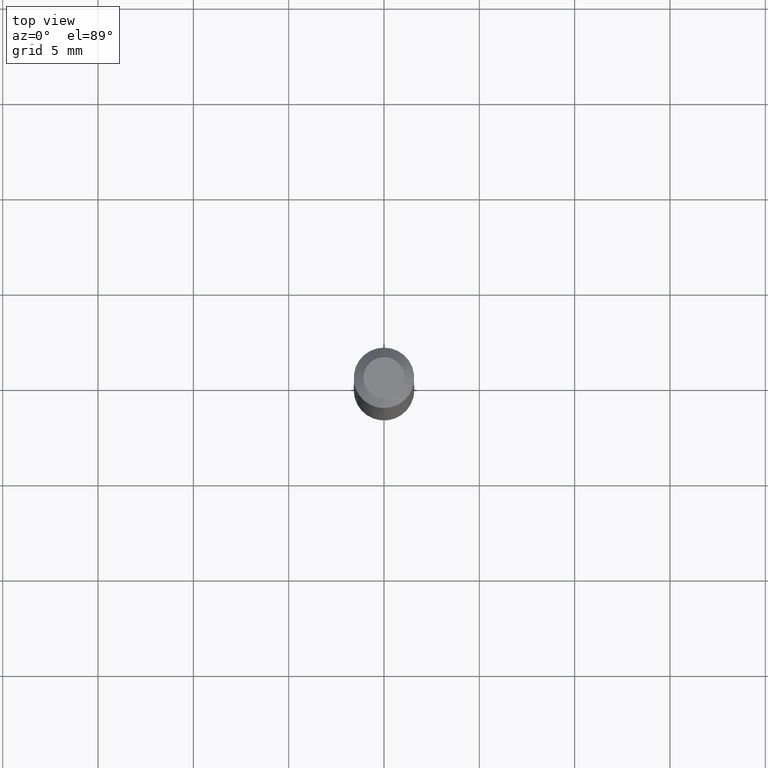
[diagram: clean part render]
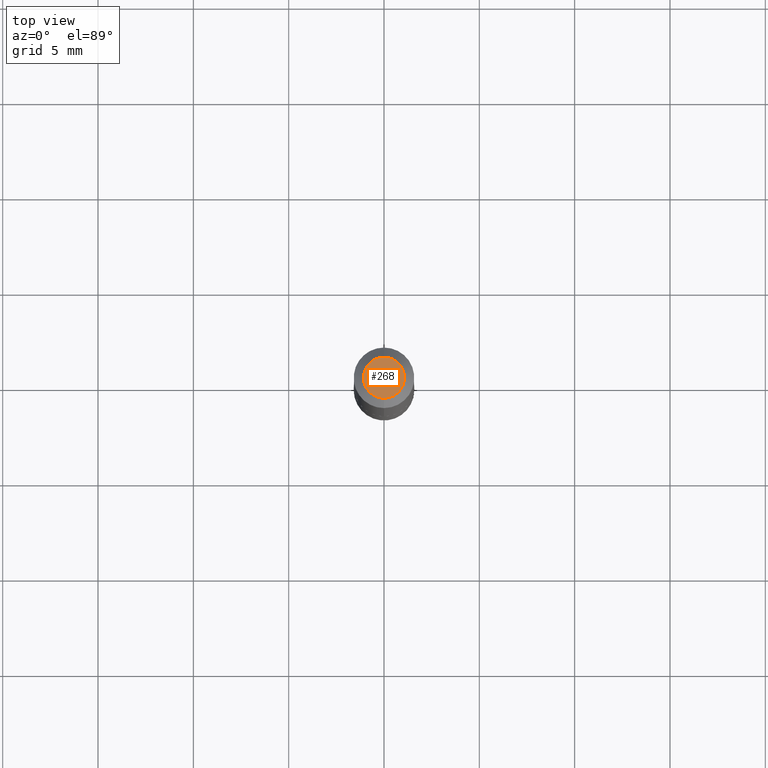
[diagram: same view with one face highlighted and labeled with its STEP entity id]
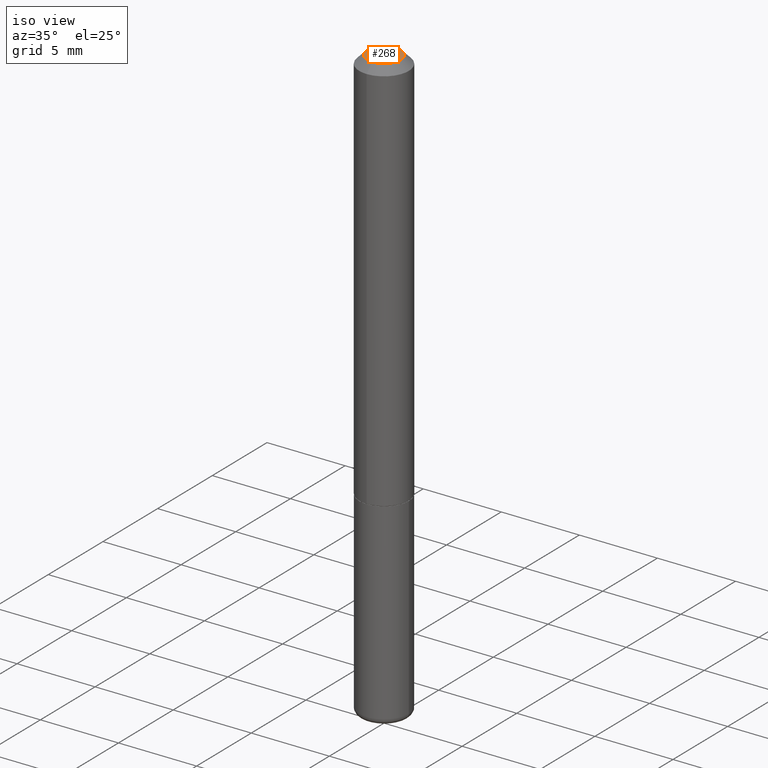
[diagram: same view with one face highlighted and labeled with its STEP entity id]
A machine part, top view. The second image highlights one B-rep face of the part: STEP entity #268.
A second angle (iso view) of the same face is appended — the face is thin or edge-on in the first view.
In plain terms, the highlighted planar face has unit normal (0, -0, -1).
Its self-contained STEP definition (entity closure, byte-faithful):
#21 = CARTESIAN_POINT ( 'NONE',  ( -3.127033908133764755E-45, 4.390167443491932908E-31, 1.268065715766883385E-16 ) ) ;
#25 = CIRCLE ( 'NONE', #264, 0.04249999999999982264 ) ;
#40 = EDGE_LOOP ( 'NONE', ( #387, #327 ) ) ;
#47 = DIRECTION ( 'NONE',  ( 2.465987266474309158E-29, -3.462097735870816064E-15, -1.000000000000000000 ) ) ;
#74 = VERTEX_POINT ( 'NONE', #236 ) ;
#77 = CARTESIAN_POINT ( 'NONE',  ( -3.601761448830043066E-16, -0.04249999999999982264, 2.739457253511973497E-16 ) ) ;
#87 = DIRECTION ( 'NONE',  ( -6.982962677686265133E-15, -1.000000000000000000, 3.462097735870815275E-15 ) ) ;
#97 = AXIS2_PLACEMENT_3D ( 'NONE', #21, #378, #87 ) ;
#110 = DIRECTION ( 'NONE',  ( -6.982962677686265133E-15, -1.000000000000000000, 3.462097735870815275E-15 ) ) ;
#145 = DIRECTION ( 'NONE',  ( -2.465987266474309438E-29, 3.462097735870816064E-15, 1.000000000000000000 ) ) ;
#148 = PLANE ( 'NONE',  #270 ) ;
#156 = EDGE_CURVE ( 'NONE', #74, #192, #25, .T. ) ;
#192 = VERTEX_POINT ( 'NONE', #77 ) ;
#236 = CARTESIAN_POINT ( 'NONE',  ( 3.666055405785283712E-16, 0.04249999999999982264, -2.033258219782074665E-17 ) ) ;
#243 = FACE_OUTER_BOUND ( 'NONE', #40, .T. ) ;
#262 = CIRCLE ( 'NONE', #97, 0.04249999999999982264 ) ;
#264 = AXIS2_PLACEMENT_3D ( 'NONE', #337, #145, #110 ) ;
#268 = ADVANCED_FACE ( 'NONE', ( #243 ), #148, .F. ) ;
#270 = AXIS2_PLACEMENT_3D ( 'NONE', #336, #47, #384 ) ;
#327 = ORIENTED_EDGE ( 'NONE', *, *, #347, .T. ) ;
#336 = CARTESIAN_POINT ( 'NONE',  ( 2.967759138016650237E-16, 0.04249999999999982264, -8.373586798616487892E-17 ) ) ;
#337 = CARTESIAN_POINT ( 'NONE',  ( -3.127033908133764755E-45, 4.390167443491932908E-31, 1.268065715766883385E-16 ) ) ;
#347 = EDGE_CURVE ( 'NONE', #192, #74, #262, .T. ) ;
#378 = DIRECTION ( 'NONE',  ( -2.465987266474309438E-29, 3.462097735870816064E-15, 1.000000000000000000 ) ) ;
#384 = DIRECTION ( 'NONE',  ( 6.982962677686265922E-15, 1.000000000000000000, -3.462097735870816064E-15 ) ) ;
#387 = ORIENTED_EDGE ( 'NONE', *, *, #156, .T. ) ;